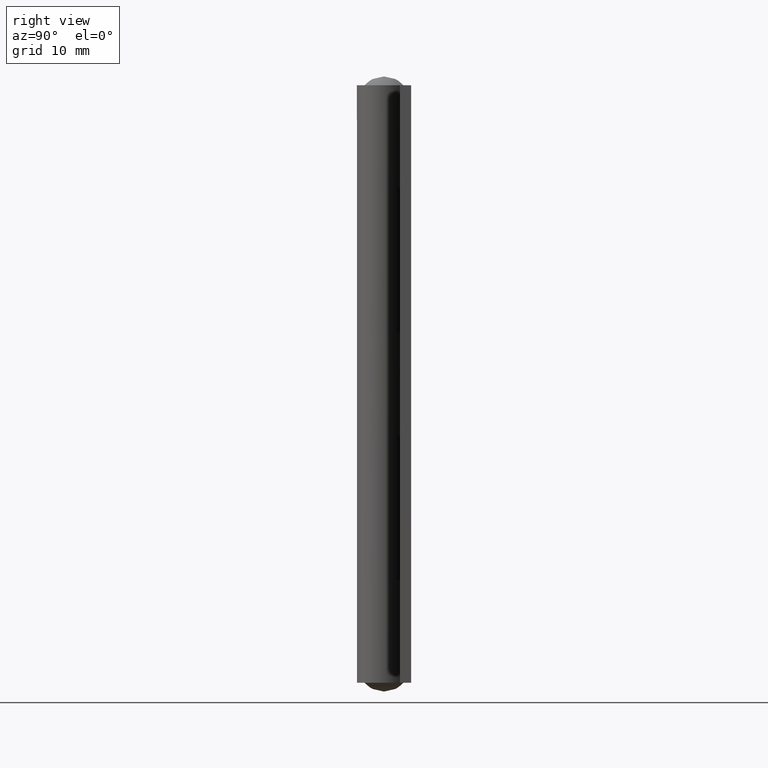
[diagram: clean part render]
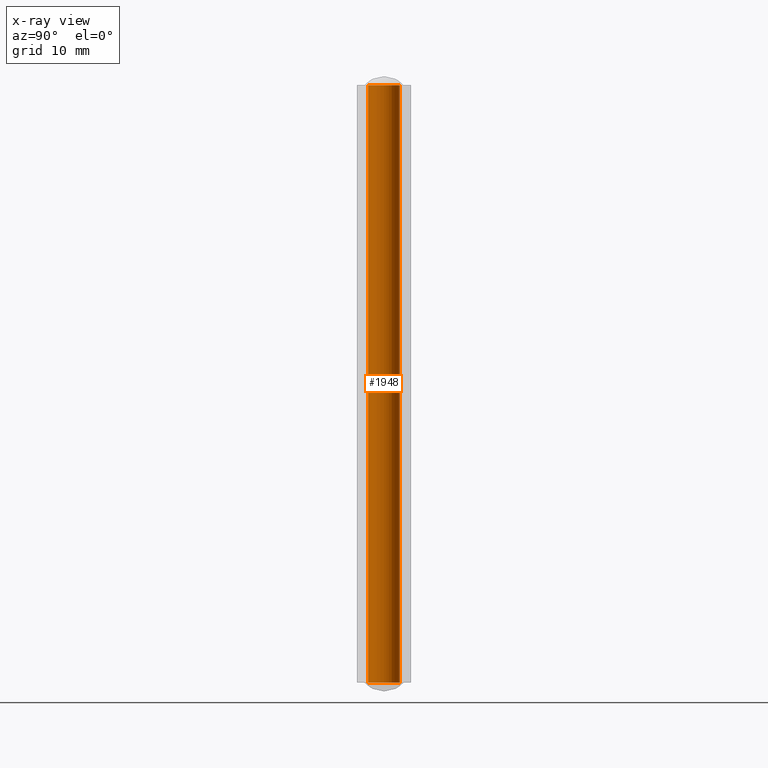
[diagram: x-ray — body ghosted, one internal face saturated and labeled with its STEP entity id]
A machine part, right view, then the same camera in x-ray: the body is ghosted and one INTERNAL B-rep face — a face not visible from any outside direction — is saturated and labeled: STEP entity #1948.
In plain terms, the highlighted face is a freeform B-spline surface patch.
Its self-contained STEP definition (entity closure, byte-faithful):
#1815=CARTESIAN_POINT('',(1.700004999999920,0.0,0.0));
#1816=VERTEX_POINT('',#1815);
#1817=CARTESIAN_POINT('',(0.103782822737873,-1.696834147973598,-3.330669E-015));
#1818=VERTEX_POINT('',#1817);
#1819=CARTESIAN_POINT('',(1.700004999999920,0.0,0.0));
#1820=CARTESIAN_POINT('',(1.700004999999920,-1.599205016999964,0.0));
#1821=CARTESIAN_POINT('',(0.103782822737873,-1.696834147973598,0.0));
#1829=(BOUNDED_CURVE()B_SPLINE_CURVE(2,(#1819,#1820,#1821),.UNSPECIFIED.,.F.,.U.)B_SPLINE_CURVE_WITH_KNOTS((3,3),(0.500000000000000,0.739332962212893),.UNSPECIFIED.)CURVE()GEOMETRIC_REPRESENTATION_ITEM()RATIONAL_B_SPLINE_CURVE((1.0,0.719603993317229,0.976072041610889))REPRESENTATION_ITEM(''));
#1830=EDGE_CURVE('',#1816,#1818,#1829,.T.);
#1849=CARTESIAN_POINT('',(-0.103782822737873,1.696834147973598,-3.330669E-015));
#1850=VERTEX_POINT('',#1849);
#1864=CARTESIAN_POINT('',(-0.103782822737874,1.696834147973598,0.0));
#1865=CARTESIAN_POINT('',(-0.051939850514778,1.700004999999920,0.0));
#1866=CARTESIAN_POINT('',(0.0,1.700004999999920,0.0));
#1867=CARTESIAN_POINT('',(1.700004999999920,1.700004999999920,0.0));
#1868=CARTESIAN_POINT('',(1.700004999999920,0.0,0.0));
#1876=(BOUNDED_CURVE()B_SPLINE_CURVE(2,(#1864,#1865,#1866,#1867,#1868),.UNSPECIFIED.,.F.,.U.)B_SPLINE_CURVE_WITH_KNOTS((3,2,3),(0.239332962212893,0.250000000000000,0.500000000000000),.UNSPECIFIED.)CURVE()GEOMETRIC_REPRESENTATION_ITEM()RATIONAL_B_SPLINE_CURVE((0.976072041610889,0.987502787869318,1.0,0.707106781186547,1.0))REPRESENTATION_ITEM(''));
#1877=EDGE_CURVE('',#1850,#1816,#1876,.T.);
#1882=CARTESIAN_POINT('',(-0.103782822451950,1.696834147991086,65.599999999999994));
#1883=CARTESIAN_POINT('',(1.593051325539135,1.800616970443036,65.599999999999994));
#1884=CARTESIAN_POINT('',(1.696834147991086,0.103782822451950,65.599999999999994));
#1885=CARTESIAN_POINT('',(1.800616970443036,-1.593051325539135,65.599999999999994));
#1886=CARTESIAN_POINT('',(0.103782822451950,-1.696834147991086,65.599999999999994));
#1887=CARTESIAN_POINT('',(-0.103782822451950,1.696834147991086,-1.640000000000001));
#1888=CARTESIAN_POINT('',(1.593051325539135,1.800616970443036,-1.640000000000001));
#1889=CARTESIAN_POINT('',(1.696834147991086,0.103782822451950,-1.640000000000001));
#1890=CARTESIAN_POINT('',(1.800616970443036,-1.593051325539135,-1.640000000000001));
#1891=CARTESIAN_POINT('',(0.103782822451950,-1.696834147991086,-1.640000000000001));
#1899=(BOUNDED_SURFACE()B_SPLINE_SURFACE(2,1,((#1882,#1887),(#1883,#1888),(#1884,#1889),(#1885,#1890),(#1886,#1891)),.UNSPECIFIED.,.F.,.F.,.U.)B_SPLINE_SURFACE_WITH_KNOTS((3,2,3),(2,2),(3.141592653589793,4.712388980384690,6.283185307179586),(0.0,67.239999999999995),.UNSPECIFIED.)GEOMETRIC_REPRESENTATION_ITEM()RATIONAL_B_SPLINE_SURFACE(((1.0,1.0),(0.707106781186548,0.707106781186548),(1.0,1.0),(0.707106781186548,0.707106781186548),(1.0,1.0)))REPRESENTATION_ITEM('')SURFACE());
#1900=ORIENTED_EDGE('',*,*,#1877,.F.);
#1901=CARTESIAN_POINT('',(-0.103782822737873,1.696834147973598,64.0));
#1902=VERTEX_POINT('',#1901);
#1903=CARTESIAN_POINT('',(-0.103782822737873,1.696834147973598,64.0));
#1904=CARTESIAN_POINT('',(-0.103782822737873,1.696834147973598,-3.330669E-015));
#1905=QUASI_UNIFORM_CURVE('',1,(#1903,#1904),.UNSPECIFIED.,.F.,.U.);
#1906=EDGE_CURVE('',#1902,#1850,#1905,.T.);
#1907=ORIENTED_EDGE('',*,*,#1906,.F.);
#1908=CARTESIAN_POINT('',(1.700004999999920,0.0,64.0));
#1909=VERTEX_POINT('',#1908);
#1910=CARTESIAN_POINT('',(-0.103782822737874,1.696834147973598,64.000000000000014));
#1911=CARTESIAN_POINT('',(-0.051939850514778,1.700004999999920,64.0));
#1912=CARTESIAN_POINT('',(0.0,1.700004999999920,64.0));
#1913=CARTESIAN_POINT('',(1.700004999999920,1.700004999999920,64.0));
#1914=CARTESIAN_POINT('',(1.700004999999920,0.0,64.0));
#1922=(BOUNDED_CURVE()B_SPLINE_CURVE(2,(#1910,#1911,#1912,#1913,#1914),.UNSPECIFIED.,.F.,.U.)B_SPLINE_CURVE_WITH_KNOTS((3,2,3),(0.239332962212893,0.250000000000000,0.500000000000000),.UNSPECIFIED.)CURVE()GEOMETRIC_REPRESENTATION_ITEM()RATIONAL_B_SPLINE_CURVE((0.976072041610889,0.987502787869318,1.0,0.707106781186547,1.0))REPRESENTATION_ITEM(''));
#1923=EDGE_CURVE('',#1902,#1909,#1922,.T.);
#1924=ORIENTED_EDGE('',*,*,#1923,.T.);
#1925=CARTESIAN_POINT('',(0.103782822737874,-1.696834147973598,64.0));
#1926=VERTEX_POINT('',#1925);
#1927=CARTESIAN_POINT('',(1.700004999999920,0.0,64.0));
#1928=CARTESIAN_POINT('',(1.700004999999921,-1.599205016999964,64.0));
#1929=CARTESIAN_POINT('',(0.103782822737874,-1.696834147973599,64.0));
#1937=(BOUNDED_CURVE()B_SPLINE_CURVE(2,(#1927,#1928,#1929),.UNSPECIFIED.,.F.,.U.)B_SPLINE_CURVE_WITH_KNOTS((3,3),(0.500000000000000,0.739332962212893),.UNSPECIFIED.)CURVE()GEOMETRIC_REPRESENTATION_ITEM()RATIONAL_B_SPLINE_CURVE((1.0,0.719603993317229,0.976072041610889))REPRESENTATION_ITEM(''));
#1938=EDGE_CURVE('',#1909,#1926,#1937,.T.);
#1939=ORIENTED_EDGE('',*,*,#1938,.T.);
#1940=CARTESIAN_POINT('',(0.103782822737874,-1.696834147973598,64.0));
#1941=CARTESIAN_POINT('',(0.103782822737873,-1.696834147973598,-3.330669E-015));
#1942=QUASI_UNIFORM_CURVE('',1,(#1940,#1941),.UNSPECIFIED.,.F.,.U.);
#1943=EDGE_CURVE('',#1926,#1818,#1942,.T.);
#1944=ORIENTED_EDGE('',*,*,#1943,.T.);
#1945=ORIENTED_EDGE('',*,*,#1830,.F.);
#1946=EDGE_LOOP('',(#1900,#1907,#1924,#1939,#1944,#1945));
#1947=FACE_OUTER_BOUND('',#1946,.T.);
#1948=ADVANCED_FACE('',(#1947),#1899,.T.);